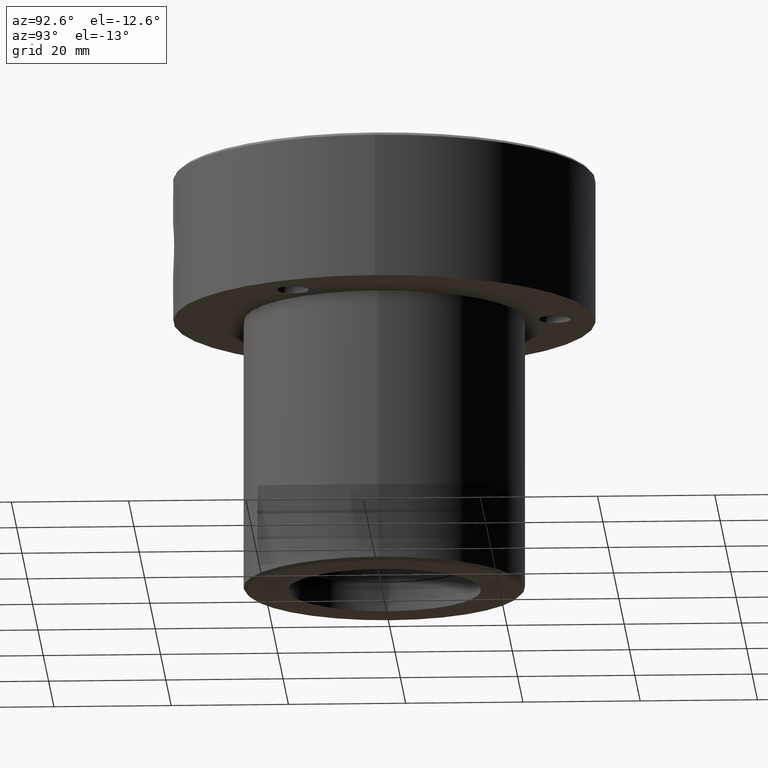
[diagram: clean part render]
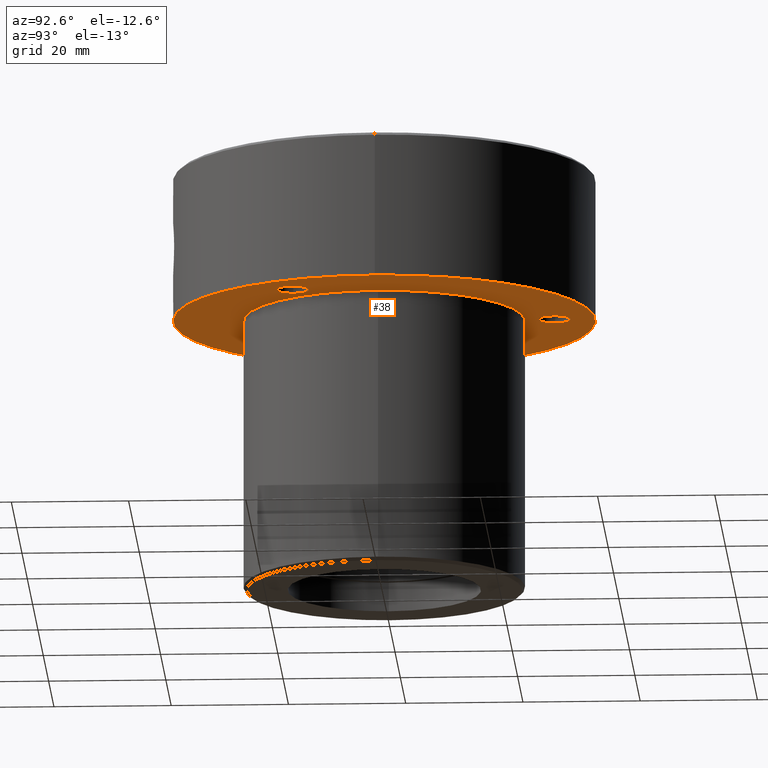
[diagram: same view with one face highlighted and labeled with its STEP entity id]
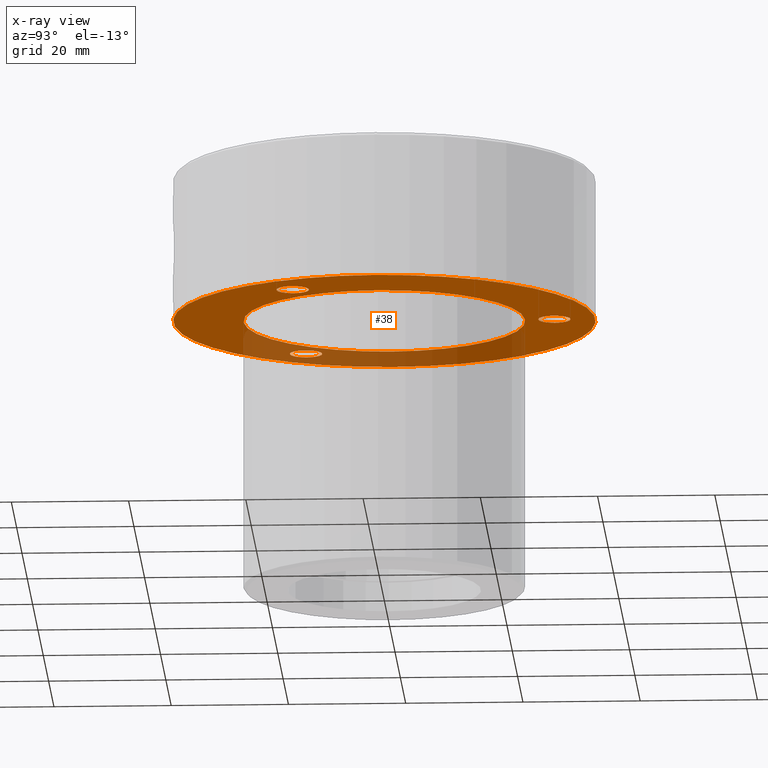
[diagram: x-ray of the same camera — body ghosted, the highlighted face saturated]
A machine part, auxiliary view. The second image highlights one B-rep face of the part: STEP entity #38.
The next image is the same camera in x-ray: the body ghosted, the highlighted face saturated — about 30% of this face is hidden behind the body in this view.
In plain terms, the highlighted planar face has unit normal (0, 0, -1).
Its self-contained STEP definition (entity closure, byte-faithful):
#2 = ORIENTED_EDGE ( 'NONE', *, *, #570, .F. ) ;
#7 = EDGE_LOOP ( 'NONE', ( #877, #745 ) ) ;
#8 = CARTESIAN_POINT ( 'NONE',  ( 2.749999999999993783, 29.00000000000000000, -24.99999999999999289 ) ) ;
#38 = ADVANCED_FACE ( 'NONE', ( #40, #237, #615, #138, #421 ), #520, .T. ) ;
#40 = FACE_BOUND ( 'NONE', #114, .T. ) ;
#58 = AXIS2_PLACEMENT_3D ( 'NONE', #566, #76, #737 ) ;
#71 = DIRECTION ( 'NONE',  ( -1.000000000000000000, 0.000000000000000000, 0.000000000000000000 ) ) ;
#76 = DIRECTION ( 'NONE',  ( -0.000000000000000000, -0.000000000000000000, 1.000000000000000000 ) ) ;
#78 = AXIS2_PLACEMENT_3D ( 'NONE', #757, #1047, #738 ) ;
#82 = EDGE_CURVE ( 'NONE', #511, #840, #810, .T. ) ;
#114 = EDGE_LOOP ( 'NONE', ( #2, #1220 ) ) ;
#138 = FACE_BOUND ( 'NONE', #197, .T. ) ;
#160 = ORIENTED_EDGE ( 'NONE', *, *, #801, .F. ) ;
#167 = CARTESIAN_POINT ( 'NONE',  ( 36.00000000000000000, 0.000000000000000000, -24.99999999999999289 ) ) ;
#172 = DIRECTION ( 'NONE',  ( 0.000000000000000000, 0.000000000000000000, -1.000000000000000000 ) ) ;
#197 = EDGE_LOOP ( 'NONE', ( #1059, #1199 ) ) ;
#205 = VERTEX_POINT ( 'NONE', #744 ) ;
#228 = EDGE_CURVE ( 'NONE', #1081, #205, #1063, .T. ) ;
#232 = AXIS2_PLACEMENT_3D ( 'NONE', #465, #970, #952 ) ;
#233 = CIRCLE ( 'NONE', #941, 2.749999999999993783 ) ;
#237 = FACE_BOUND ( 'NONE', #7, .T. ) ;
#244 = CIRCLE ( 'NONE', #525, 2.749999999999992006 ) ;
#246 = CIRCLE ( 'NONE', #665, 2.749999999999995559 ) ;
#251 = CARTESIAN_POINT ( 'NONE',  ( -24.00000000000000000, 2.939152317953647894E-15, -24.99999999999999289 ) ) ;
#264 = ORIENTED_EDGE ( 'NONE', *, *, #1046, .F. ) ;
#302 = ORIENTED_EDGE ( 'NONE', *, *, #1162, .F. ) ;
#307 = EDGE_CURVE ( 'NONE', #840, #511, #957, .T. ) ;
#324 = AXIS2_PLACEMENT_3D ( 'NONE', #718, #726, #629 ) ;
#329 = DIRECTION ( 'NONE',  ( 0.000000000000000000, 0.000000000000000000, -1.000000000000000000 ) ) ;
#357 = CIRCLE ( 'NONE', #78, 36.00000000000000000 ) ;
#374 = DIRECTION ( 'NONE',  ( -1.000000000000000000, 0.000000000000000000, 0.000000000000000000 ) ) ;
#376 = EDGE_CURVE ( 'NONE', #205, #1081, #244, .T. ) ;
#377 = VERTEX_POINT ( 'NONE', #8 ) ;
#401 = CARTESIAN_POINT ( 'NONE',  ( -25.11473670974875105, -14.49999999999994316, -24.99999999999999289 ) ) ;
#421 = FACE_OUTER_BOUND ( 'NONE', #1231, .T. ) ;
#441 = CARTESIAN_POINT ( 'NONE',  ( -25.11473670974875105, -14.49999999999994316, -24.99999999999999289 ) ) ;
#443 = CIRCLE ( 'NONE', #902, 2.749999999999993783 ) ;
#454 = DIRECTION ( 'NONE',  ( -1.000000000000000000, 0.000000000000000000, 0.000000000000000000 ) ) ;
#465 = CARTESIAN_POINT ( 'NONE',  ( 0.000000000000000000, 0.000000000000000000, -24.99999999999999289 ) ) ;
#466 = VERTEX_POINT ( 'NONE', #879 ) ;
#484 = AXIS2_PLACEMENT_3D ( 'NONE', #441, #828, #1224 ) ;
#488 = CARTESIAN_POINT ( 'NONE',  ( -27.86473670974874750, -14.49999999999994316, -24.99999999999999289 ) ) ;
#511 = VERTEX_POINT ( 'NONE', #251 ) ;
#520 = PLANE ( 'NONE',  #830 ) ;
#525 = AXIS2_PLACEMENT_3D ( 'NONE', #868, #1093, #374 ) ;
#563 = VERTEX_POINT ( 'NONE', #167 ) ;
#566 = CARTESIAN_POINT ( 'NONE',  ( 0.000000000000000000, 0.000000000000000000, -24.99999999999999289 ) ) ;
#570 = EDGE_CURVE ( 'NONE', #466, #1145, #584, .T. ) ;
#584 = CIRCLE ( 'NONE', #484, 2.749999999999995559 ) ;
#615 = FACE_BOUND ( 'NONE', #996, .T. ) ;
#621 = CARTESIAN_POINT ( 'NONE',  ( 22.36473670974866579, -14.50000000000011013, -24.99999999999999289 ) ) ;
#626 = CIRCLE ( 'NONE', #772, 36.00000000000000000 ) ;
#629 = DIRECTION ( 'NONE',  ( -1.000000000000000000, 0.000000000000000000, 0.000000000000000000 ) ) ;
#655 = EDGE_CURVE ( 'NONE', #787, #563, #357, .T. ) ;
#662 = EDGE_CURVE ( 'NONE', #1145, #466, #246, .T. ) ;
#665 = AXIS2_PLACEMENT_3D ( 'NONE', #401, #1186, #688 ) ;
#688 = DIRECTION ( 'NONE',  ( -1.000000000000000000, 0.000000000000000000, 0.000000000000000000 ) ) ;
#711 = DIRECTION ( 'NONE',  ( -1.000000000000000000, 0.000000000000000000, -0.000000000000000000 ) ) ;
#718 = CARTESIAN_POINT ( 'NONE',  ( 25.11473670974865868, -14.50000000000011013, -24.99999999999999289 ) ) ;
#726 = DIRECTION ( 'NONE',  ( 0.000000000000000000, 0.000000000000000000, -1.000000000000000000 ) ) ;
#737 = DIRECTION ( 'NONE',  ( 1.000000000000000000, 0.000000000000000000, 0.000000000000000000 ) ) ;
#738 = DIRECTION ( 'NONE',  ( 1.000000000000000000, 0.000000000000000000, 0.000000000000000000 ) ) ;
#744 = CARTESIAN_POINT ( 'NONE',  ( 27.86473670974864802, -14.50000000000011013, -24.99999999999999289 ) ) ;
#745 = ORIENTED_EDGE ( 'NONE', *, *, #228, .F. ) ;
#757 = CARTESIAN_POINT ( 'NONE',  ( 0.000000000000000000, 0.000000000000000000, -24.99999999999999289 ) ) ;
#764 = CARTESIAN_POINT ( 'NONE',  ( 24.00000000000000000, 0.000000000000000000, -24.99999999999999289 ) ) ;
#772 = AXIS2_PLACEMENT_3D ( 'NONE', #906, #1202, #1105 ) ;
#787 = VERTEX_POINT ( 'NONE', #937 ) ;
#801 = EDGE_CURVE ( 'NONE', #1075, #377, #233, .T. ) ;
#810 = CIRCLE ( 'NONE', #58, 24.00000000000000000 ) ;
#813 = CARTESIAN_POINT ( 'NONE',  ( 0.000000000000000000, 36.00000000000000000, -24.99999999999999289 ) ) ;
#824 = CARTESIAN_POINT ( 'NONE',  ( -2.749999999999993783, 29.00000000000000000, -24.99999999999999289 ) ) ;
#828 = DIRECTION ( 'NONE',  ( 0.000000000000000000, 0.000000000000000000, -1.000000000000000000 ) ) ;
#830 = AXIS2_PLACEMENT_3D ( 'NONE', #813, #329, #711 ) ;
#840 = VERTEX_POINT ( 'NONE', #764 ) ;
#847 = DIRECTION ( 'NONE',  ( 0.000000000000000000, 0.000000000000000000, -1.000000000000000000 ) ) ;
#851 = ORIENTED_EDGE ( 'NONE', *, *, #655, .F. ) ;
#868 = CARTESIAN_POINT ( 'NONE',  ( 25.11473670974865868, -14.50000000000011013, -24.99999999999999289 ) ) ;
#877 = ORIENTED_EDGE ( 'NONE', *, *, #376, .F. ) ;
#879 = CARTESIAN_POINT ( 'NONE',  ( -22.36473670974875461, -14.49999999999994316, -24.99999999999999289 ) ) ;
#902 = AXIS2_PLACEMENT_3D ( 'NONE', #917, #172, #71 ) ;
#906 = CARTESIAN_POINT ( 'NONE',  ( 0.000000000000000000, 0.000000000000000000, -24.99999999999999289 ) ) ;
#917 = CARTESIAN_POINT ( 'NONE',  ( 0.000000000000000000, 29.00000000000000000, -24.99999999999999289 ) ) ;
#937 = CARTESIAN_POINT ( 'NONE',  ( -36.00000000000000000, 4.408728476930470856E-15, -24.99999999999999289 ) ) ;
#941 = AXIS2_PLACEMENT_3D ( 'NONE', #1232, #847, #454 ) ;
#952 = DIRECTION ( 'NONE',  ( 1.000000000000000000, 0.000000000000000000, 0.000000000000000000 ) ) ;
#957 = CIRCLE ( 'NONE', #232, 24.00000000000000000 ) ;
#970 = DIRECTION ( 'NONE',  ( -0.000000000000000000, -0.000000000000000000, 1.000000000000000000 ) ) ;
#996 = EDGE_LOOP ( 'NONE', ( #264, #160 ) ) ;
#1046 = EDGE_CURVE ( 'NONE', #377, #1075, #443, .T. ) ;
#1047 = DIRECTION ( 'NONE',  ( -0.000000000000000000, -0.000000000000000000, 1.000000000000000000 ) ) ;
#1059 = ORIENTED_EDGE ( 'NONE', *, *, #307, .T. ) ;
#1063 = CIRCLE ( 'NONE', #324, 2.749999999999992006 ) ;
#1075 = VERTEX_POINT ( 'NONE', #824 ) ;
#1081 = VERTEX_POINT ( 'NONE', #621 ) ;
#1093 = DIRECTION ( 'NONE',  ( 0.000000000000000000, 0.000000000000000000, -1.000000000000000000 ) ) ;
#1105 = DIRECTION ( 'NONE',  ( 1.000000000000000000, 0.000000000000000000, 0.000000000000000000 ) ) ;
#1145 = VERTEX_POINT ( 'NONE', #488 ) ;
#1162 = EDGE_CURVE ( 'NONE', #563, #787, #626, .T. ) ;
#1186 = DIRECTION ( 'NONE',  ( 0.000000000000000000, 0.000000000000000000, -1.000000000000000000 ) ) ;
#1199 = ORIENTED_EDGE ( 'NONE', *, *, #82, .T. ) ;
#1202 = DIRECTION ( 'NONE',  ( -0.000000000000000000, -0.000000000000000000, 1.000000000000000000 ) ) ;
#1220 = ORIENTED_EDGE ( 'NONE', *, *, #662, .F. ) ;
#1224 = DIRECTION ( 'NONE',  ( -1.000000000000000000, 0.000000000000000000, 0.000000000000000000 ) ) ;
#1231 = EDGE_LOOP ( 'NONE', ( #302, #851 ) ) ;
#1232 = CARTESIAN_POINT ( 'NONE',  ( 0.000000000000000000, 29.00000000000000000, -24.99999999999999289 ) ) ;